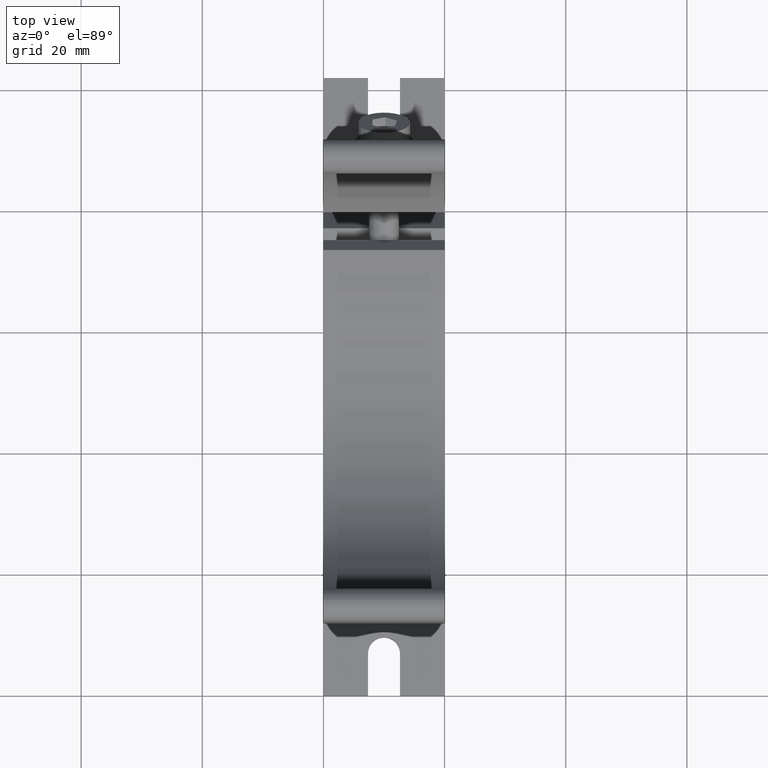
[diagram: clean part render]
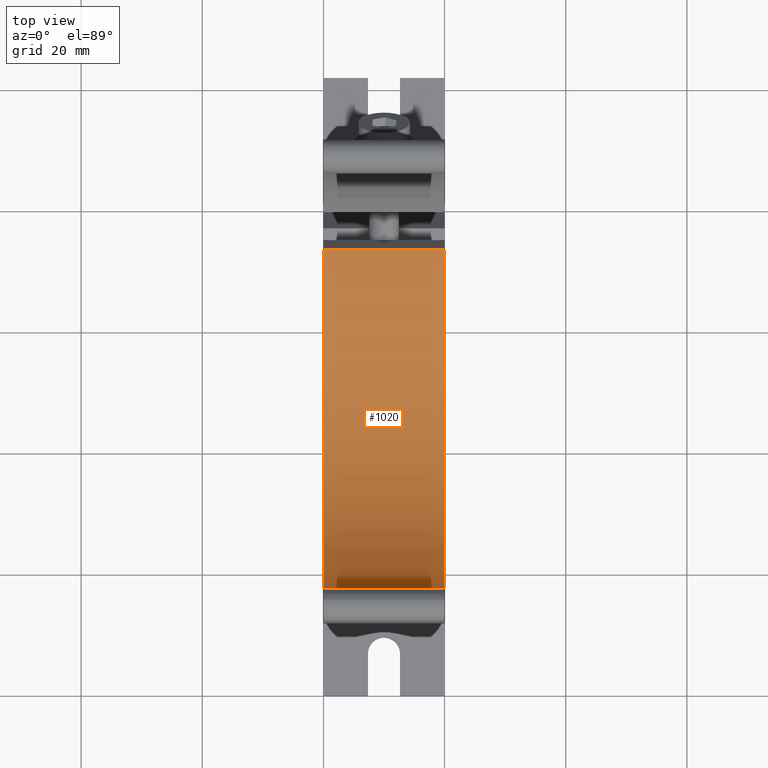
[diagram: same view with one face highlighted and labeled with its STEP entity id]
A machine part, top view. The second image highlights one B-rep face of the part: STEP entity #1020.
In plain terms, the highlighted cylindrical surface (partial cylindrical patch) has radius 35.5 mm, axis along (-1, 0, 0).
Its self-contained STEP definition (entity closure, byte-faithful):
#610=CARTESIAN_POINT('',(0.,0.,20.1));
#620=DIRECTION('',(0.,0.,-1.));
#630=DIRECTION('',(-1.,0.,0.));
#640=AXIS2_PLACEMENT_3D('',#610,#620,#630);
#650=CYLINDRICAL_SURFACE('',#640,35.5);
#660=CARTESIAN_POINT('',(0.,0.,0.100000000000001));
#670=DIRECTION('',(0.,0.,1.));
#680=DIRECTION('',(-1.,0.,0.));
#690=AXIS2_PLACEMENT_3D('',#660,#670,#680);
#700=CIRCLE('',#690,35.5);
#710=CARTESIAN_POINT('',(-35.4978398082479,0.391623477293338,
0.100000000000001));
#720=VERTEX_POINT('',#710);
#730=CARTESIAN_POINT('',(22.189330721415,-27.7107127684524,
0.100000000000001));
#740=VERTEX_POINT('',#730);
#750=EDGE_CURVE('',#720,#740,#700,.T.);
#760=ORIENTED_EDGE('',*,*,#750,.F.);
#770=CARTESIAN_POINT('',(22.189330721415,-27.7107127684524,20.1));
#780=DIRECTION('',(0.,0.,-1.));
#790=VECTOR('',#780,1.);
#800=LINE('',#770,#790);
#810=CARTESIAN_POINT('',(22.189330721415,-27.7107127684524,20.1));
#820=VERTEX_POINT('',#810);
#830=EDGE_CURVE('',#820,#740,#800,.T.);
#840=ORIENTED_EDGE('',*,*,#830,.T.);
#850=CARTESIAN_POINT('',(0.,0.,20.1));
#860=DIRECTION('',(0.,0.,1.));
#870=DIRECTION('',(-1.,0.,0.));
#880=AXIS2_PLACEMENT_3D('',#850,#860,#870);
#890=CIRCLE('',#880,35.5);
#900=CARTESIAN_POINT('',(-35.4978398082479,0.391623477293421,20.1));
#910=VERTEX_POINT('',#900);
#920=EDGE_CURVE('',#910,#820,#890,.T.);
#930=ORIENTED_EDGE('',*,*,#920,.T.);
#940=CARTESIAN_POINT('',(-35.4978398082479,0.391623477293338,20.1));
#950=DIRECTION('',(0.,0.,1.));
#960=VECTOR('',#950,1.);
#970=LINE('',#940,#960);
#980=EDGE_CURVE('',#720,#910,#970,.T.);
#990=ORIENTED_EDGE('',*,*,#980,.T.);
#1000=EDGE_LOOP('',(#990,#930,#840,#760));
#1010=FACE_OUTER_BOUND('',#1000,.T.);
#1020=ADVANCED_FACE('',(#1010),#650,.F.);